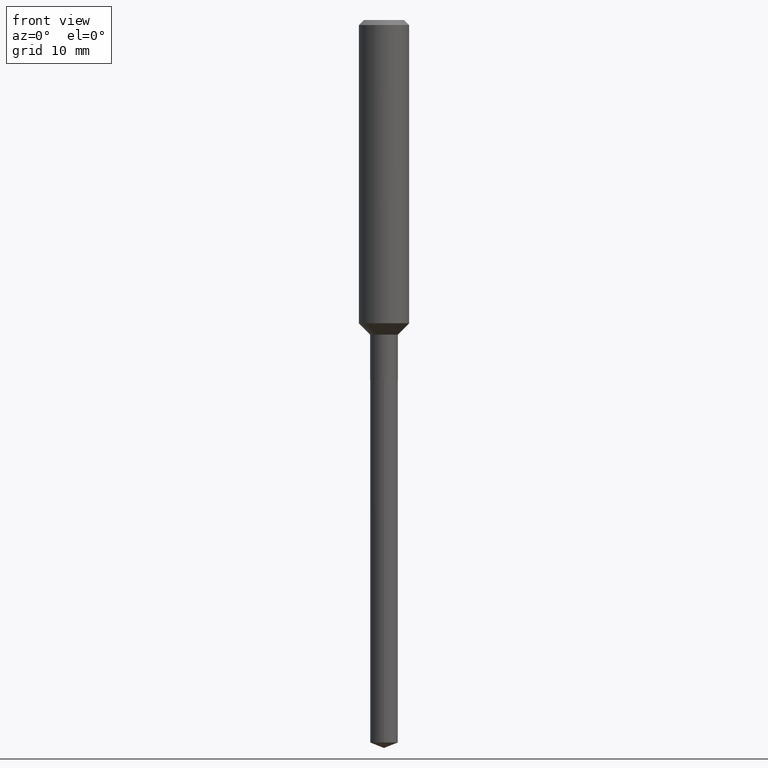
[diagram: clean part render]
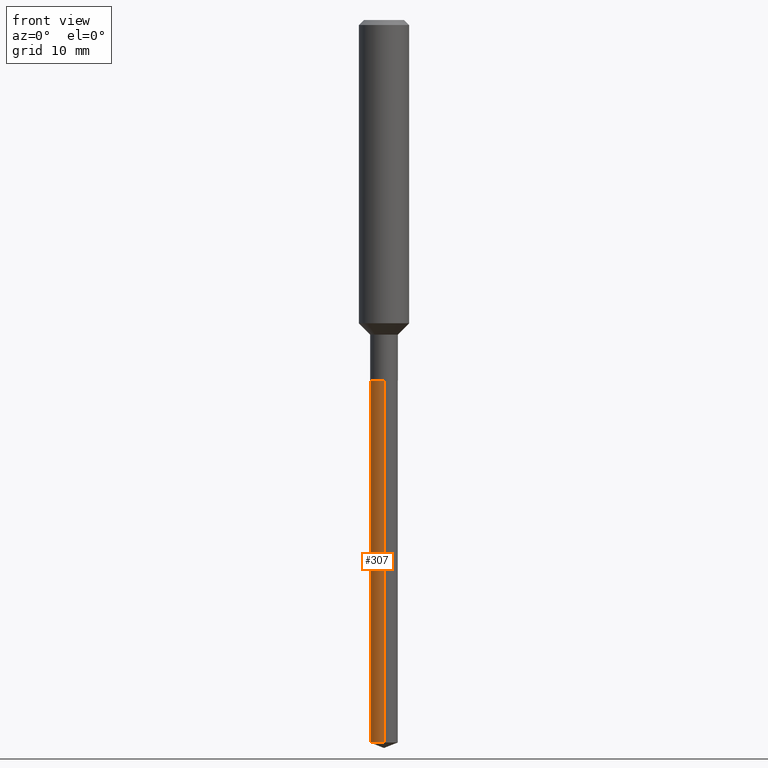
[diagram: same view with one face highlighted and labeled with its STEP entity id]
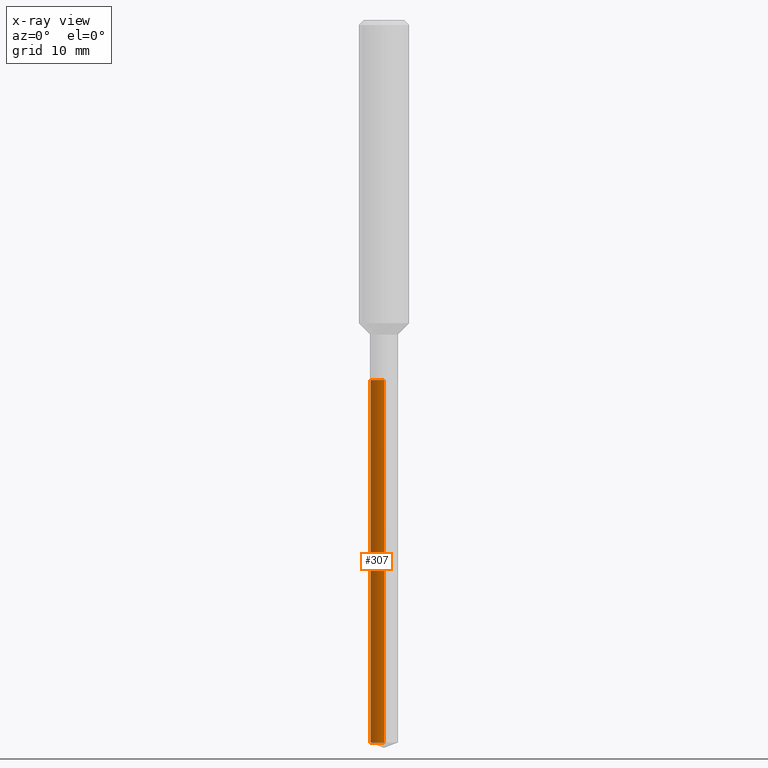
[diagram: x-ray of the same camera — body ghosted, the highlighted face saturated]
A machine part, front view. The second image highlights one B-rep face of the part: STEP entity #307.
The next image is the same camera in x-ray: the body ghosted, the highlighted face saturated — about 0% of this face is hidden behind the body in this view.
In plain terms, the highlighted cylindrical surface (edge-blend (fillet) strip) has radius 1.6497 mm, axis along (-0, 0, 1).
Its self-contained STEP definition (entity closure, byte-faithful):
#8 = LINE ( 'NONE', #348, #124 ) ;
#21 = CARTESIAN_POINT ( 'NONE',  ( 4.134309563736591358E-29, -5.902698351448221370E-15, -1.690599999999999659 ) ) ;
#33 = VERTEX_POINT ( 'NONE', #68 ) ;
#35 = VERTEX_POINT ( 'NONE', #342 ) ;
#60 = ORIENTED_EDGE ( 'NONE', *, *, #204, .T. ) ;
#68 = CARTESIAN_POINT ( 'NONE',  ( -4.535434259156402642E-16, -0.06495000000001187324, -3.391415514608810078 ) ) ;
#76 = EDGE_CURVE ( 'NONE', #33, #153, #8, .T. ) ;
#88 = CYLINDRICAL_SURFACE ( 'NONE', #471, 0.06494999999999999385 ) ;
#101 = EDGE_LOOP ( 'NONE', ( #260, #60, #285, #289 ) ) ;
#104 = VERTEX_POINT ( 'NONE', #116 ) ;
#108 = AXIS2_PLACEMENT_3D ( 'NONE', #254, #241, #247 ) ;
#115 = LINE ( 'NONE', #277, #125 ) ;
#116 = CARTESIAN_POINT ( 'NONE',  ( 4.614975068762680546E-16, 0.06494999999998818385, -3.391415514608810078 ) ) ;
#122 = CIRCLE ( 'NONE', #151, 0.06494999999999999385 ) ;
#124 = VECTOR ( 'NONE', #309, 39.37007874015748143 ) ;
#125 = VECTOR ( 'NONE', #128, 39.37007874015748143 ) ;
#128 = DIRECTION ( 'NONE',  ( -2.440828478145644686E-29, 3.498126552706767678E-15, 1.000000000000000000 ) ) ;
#151 = AXIS2_PLACEMENT_3D ( 'NONE', #225, #415, #217 ) ;
#153 = VERTEX_POINT ( 'NONE', #167 ) ;
#158 = CIRCLE ( 'NONE', #108, 0.06495000000000000773 ) ;
#167 = CARTESIAN_POINT ( 'NONE',  ( -4.535434259156815808E-16, -0.06495000000000589191, -1.690599999999999437 ) ) ;
#191 = EDGE_CURVE ( 'NONE', #104, #35, #115, .T. ) ;
#204 = EDGE_CURVE ( 'NONE', #104, #33, #158, .T. ) ;
#217 = DIRECTION ( 'NONE',  ( -6.982962677686266711E-15, -1.000000000000000000, 4.206078512185163024E-15 ) ) ;
#225 = CARTESIAN_POINT ( 'NONE',  ( 4.134309563736591358E-29, -5.902698351448221370E-15, -1.690599999999999659 ) ) ;
#241 = DIRECTION ( 'NONE',  ( -2.440828478145644686E-29, 3.498126552706767678E-15, 1.000000000000000000 ) ) ;
#247 = DIRECTION ( 'NONE',  ( -6.982962677686265133E-15, -1.000000000000000000, 0.000000000000000000 ) ) ;
#254 = CARTESIAN_POINT ( 'NONE',  ( 8.285708507865714879E-29, -1.185236626435692733E-14, -3.391415514608810078 ) ) ;
#260 = ORIENTED_EDGE ( 'NONE', *, *, #191, .F. ) ;
#277 = CARTESIAN_POINT ( 'NONE',  ( 4.614975068762263436E-16, 0.06494999999999409579, -1.690600000000000103 ) ) ;
#285 = ORIENTED_EDGE ( 'NONE', *, *, #76, .T. ) ;
#289 = ORIENTED_EDGE ( 'NONE', *, *, #383, .F. ) ;
#307 = ADVANCED_FACE ( 'NONE', ( #316 ), #88, .T. ) ;
#309 = DIRECTION ( 'NONE',  ( -2.440828478145644686E-29, 3.498126552706767678E-15, 1.000000000000000000 ) ) ;
#316 = FACE_OUTER_BOUND ( 'NONE', #101, .T. ) ;
#342 = CARTESIAN_POINT ( 'NONE',  ( 4.614975068762683505E-16, 0.06494999999999410967, -1.690600000000000103 ) ) ;
#348 = CARTESIAN_POINT ( 'NONE',  ( -4.535434259156815808E-16, -0.06495000000000589191, -1.690599999999999437 ) ) ;
#383 = EDGE_CURVE ( 'NONE', #35, #153, #122, .T. ) ;
#394 = DIRECTION ( 'NONE',  ( -6.982962677686266711E-15, -1.000000000000000000, 4.206078512185163024E-15 ) ) ;
#400 = DIRECTION ( 'NONE',  ( -2.440828478145644686E-29, 3.498126552706767678E-15, 1.000000000000000000 ) ) ;
#415 = DIRECTION ( 'NONE',  ( -2.440828478145644686E-29, 3.498126552706767678E-15, 1.000000000000000000 ) ) ;
#471 = AXIS2_PLACEMENT_3D ( 'NONE', #21, #400, #394 ) ;